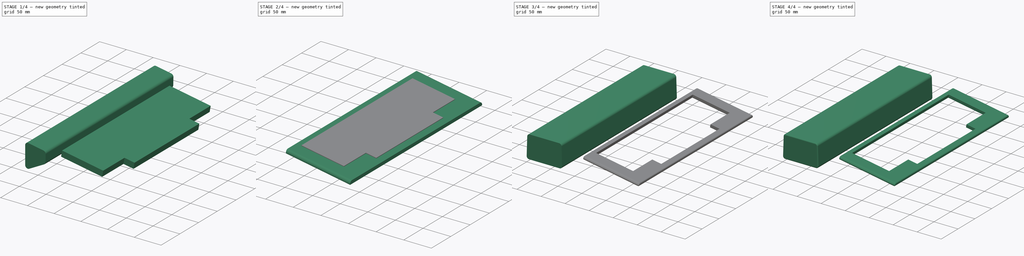
[diagram: build sequence overview — one tinted view per stage of 4, left to right]
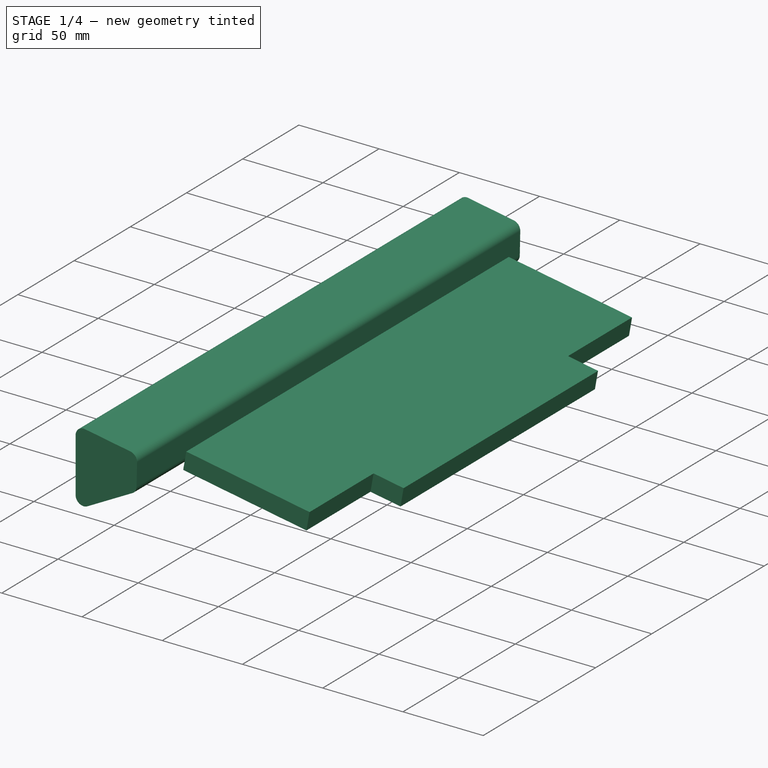
[diagram: stage 1 of 4 — iso view after this stage's code; geometry added in this stage tinted green]
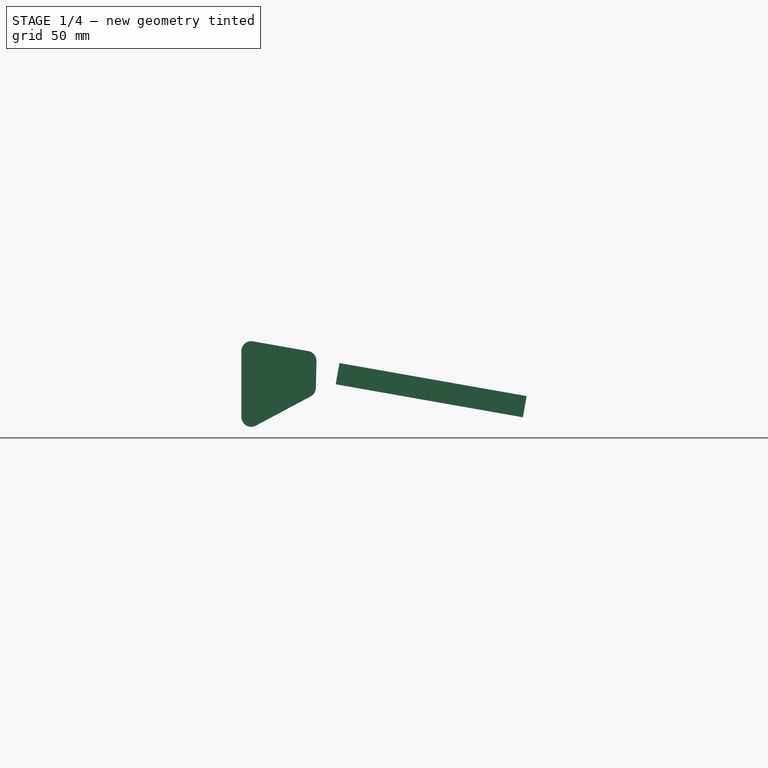
[diagram: stage 1 of 4 — front view after this stage's code; geometry added in this stage tinted green]
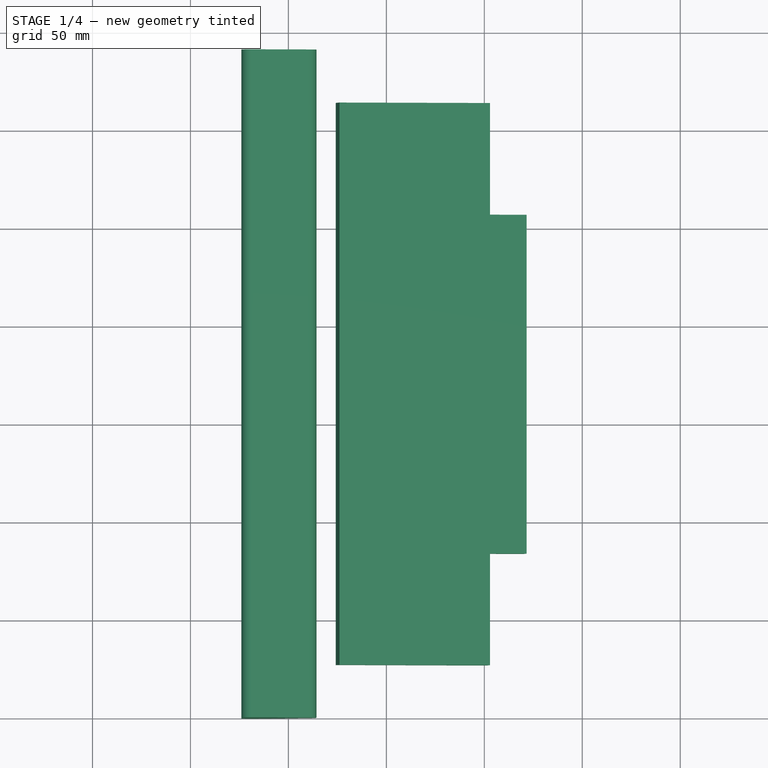
[diagram: stage 1 of 4 — top view after this stage's code; geometry added in this stage tinted green]
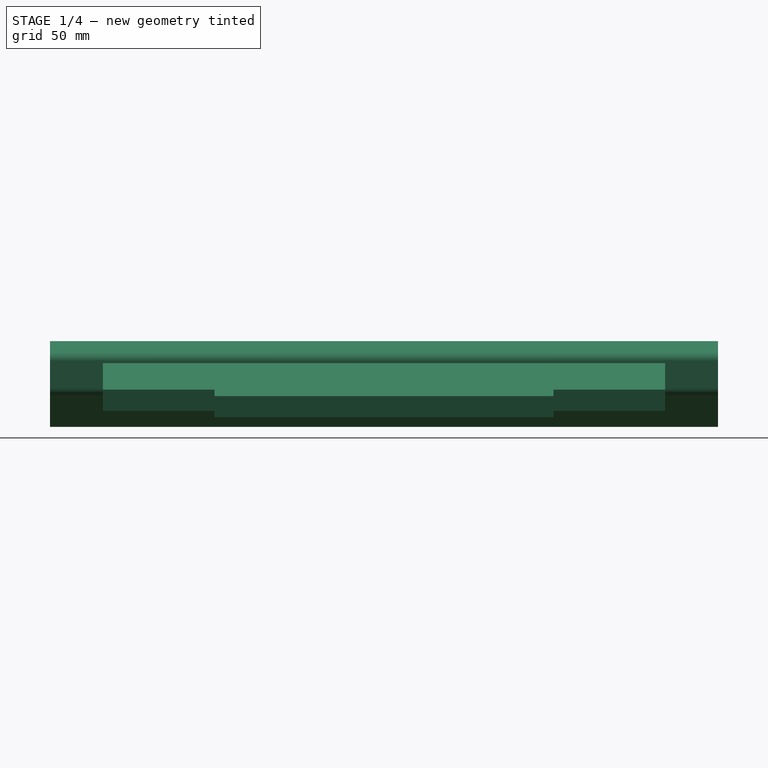
[diagram: stage 1 of 4 — right view after this stage's code; geometry added in this stage tinted green]
FCSTD DOCUMENT  (FreeCAD 1.1R20260325 (Git shallow))
Label: DecentXE-case
License: All rights reserved
LicenseURL: http://en.wikipedia.org/wiki/All_rights_reserved
objects: Sketcher::SketchObject×4, Part::Extrusion×4, Part::Fillet×3, App::Point×3, App::Part×2, Spreadsheet::Sheet×1, PartDesign::FeatureBase×1, PartDesign::Body×1, Part::Feature×1, Part::Cut×1
note: 20 computed .brp shape members not serialized (recipe doc carries the construction recipe); baked Part::Feature solids carry a one-line shape summary decoded from their .brp

FEATURE [Sketcher::SketchObject] Sketch001  label="Side middle"
  ArcFitTolerance = 0
  AttachmentSupport = -> [XZ_Plane001]
  ExternalTypes = [0]
  FullyConstrained = true
  MakeInternals = false
  MapMode = 5
  Placement = pos=(0,0,0) rot=(1,0,0;1.5708rad)
  _ExternalGeoVersion = 0
  expr: Constraints[23] = <<Params>>.SideFillet
  expr: Constraints[24] = <<Params>>.SideFillet
  expr: Constraints[25] = <<Params>>.SideFillet
  expr: Constraints[26] = <<Params>>.SideFillet
  expr: Constraints[27] = <<Params>>.Incline
  sketch-geometry (12):
    g0: LineSegment StartX=76 StartY=53.0412 StartZ=0 EndX=76 EndY=19.3327 EndZ=0
    g1: LineSegment StartX=83.3527 StartY=14.9208 StartZ=0 EndX=111.361 EndY=29.8564 EndZ=0
    g2: LineSegment StartX=114.007 StartY=34.1576 StartZ=0 EndX=114.312 EndY=47.938 EndZ=0
    g3: LineSegment StartX=110.182 StartY=52.9728 StartZ=0 EndX=81.8682 EndY=57.9653 EndZ=0
    g4: ArcOfCircle CenterX=81 CenterY=53.0412 CenterZ=0 NormalX=0 NormalY=0 NormalZ=1 AngleXU=0 Radius=5 StartAngle=1.39626 EndAngle=3.14159
    g5: GeomPoint [constr] X=76 Y=59 Z=0
    g6: ArcOfCircle CenterX=109.314 CenterY=48.0488 CenterZ=0 NormalX=0 NormalY=0 NormalZ=1 AngleXU=0 Radius=5 StartAngle=6.26104 EndAngle=7.67945
    g7: GeomPoint [constr] X=114.408 Y=52.2277 Z=0
    g8: ArcOfCircle CenterX=109.008 CenterY=34.2683 CenterZ=0 NormalX=0 NormalY=0 NormalZ=1 AngleXU=0 Radius=5 StartAngle=5.20228 EndAngle=6.26104
    g9: GeomPoint [constr] X=113.942 Y=31.2329 Z=0
    g10: ArcOfCircle CenterX=81 CenterY=19.3327 CenterZ=0 NormalX=0 NormalY=0 NormalZ=1 AngleXU=0 Radius=5 StartAngle=3.14159 EndAngle=5.20228
    g11: GeomPoint [constr] X=76 Y=11 Z=0
  constraints (28):
    c: Distance(g11,g5) = 48
    c: Distance(g11,g9) = 43
    c: Distance(g9,g7) = 21
    c: Distance(g7,g5) = 39
    c: DistanceY(g-1,g11) = 11
    c: DistanceX(g-1,g11) = 76
    c: Vertical(g0)
    c: PointOnObject(g5,g0)
    c: PointOnObject(g5,g3)
    c: Tangent(g0,g4) = -1.5708
    c: Tangent(g3,g4) = -1.5708
    c: PointOnObject(g7,g3)
    c: PointOnObject(g7,g2)
    c: Tangent(g3,g6) = -1.5708
    c: Tangent(g2,g6) = -1.5708
    c: PointOnObject(g9,g2)
    c: PointOnObject(g9,g1)
    c: Tangent(g2,g8) = -1.5708
    c: Tangent(g1,g8) = -1.5708
    c: PointOnObject(g11,g1)
    c: PointOnObject(g11,g0)
    c: Tangent(g1,g10) = -1.5708
    c: Tangent(g0,g10) = -1.5708
    c: Radius(g4) = 5
    c: Radius(g6) = 5
    c: Radius(g8) = 5
    c: Radius(g10) = 5
    c: Angle(g3,g-1) = 0.174533
FEATURE [Part::Extrusion] Extrude001
  Base = -> Sketch001
  Dir = (0,-1,2e-16)
  DirMode = 2
  FaceMakerClass = Part::FaceMakerBullseye
  FaceMakerMode = 3
  InnerWireTaper = 0
  LengthFwd = -341
  LengthRev = 0
  Solid = true
  Symmetric = false
FEATURE [Sketcher::SketchObject] Sketch003  label="Keyboard cutout"
  ArcFitTolerance = 0
  AttachmentSupport = -> [Fillet002]
  ExternalTypes = [0]
  FullyConstrained = true
  MakeInternals = false
  MapMode = 5
  Placement = pos=(11.6431,0,66.0312) rot=(0,1,0;0.174533rad)
  _ExternalGeoVersion = 0
  expr: Constraints[22] = (<<Params>>.Width - 287) / 2
  sketch-geometry (8):
    g0: LineSegment StartX=116 StartY=27 StartZ=0 EndX=116 EndY=314 EndZ=0
    g1: LineSegment StartX=116 StartY=314 StartZ=0 EndX=194 EndY=314 EndZ=0
    g2: LineSegment StartX=194 StartY=314 StartZ=0 EndX=194 EndY=257 EndZ=0
    g3: LineSegment StartX=194 StartY=257 StartZ=0 EndX=213 EndY=257 EndZ=0
    g4: LineSegment StartX=213 StartY=257 StartZ=0 EndX=213 EndY=84 EndZ=0
    g5: LineSegment StartX=213 StartY=84 StartZ=0 EndX=194 EndY=84 EndZ=0
    g6: LineSegment StartX=194 StartY=84 StartZ=0 EndX=194 EndY=27 EndZ=0
    g7: LineSegment StartX=194 StartY=27 StartZ=0 EndX=116 EndY=27 EndZ=0
  constraints (24):
    c: Vertical(g0)
    c: Coincident(g0,g1)
    c: Horizontal(g1)
    c: Coincident(g1,g2)
    c: Vertical(g2)
    c: Coincident(g2,g3)
    c: Horizontal(g3)
    c: Coincident(g3,g4)
    c: Vertical(g4)
    c: Coincident(g4,g5)
    c: Horizontal(g5)
    c: Coincident(g5,g6)
    c: Vertical(g6)
    c: Coincident(g6,g7)
    c: Coincident(g7,g0)
    c: Horizontal(g7)
    c: Distance(g7) = 78
    c: Equal(g7,g1)
    c: Equal(g6,g2)
    c: DistanceX(g0,g4) = 97
    c: Distance(g0) = 287
    c: Distance(g4) = 173
    c: DistanceY(g-1,g0) = 27
    c: DistanceX(g-1,g0) = 116
FEATURE [Part::Extrusion] Extrude003
  Base = -> Sketch003
  Dir = (0.173648,0,0.984808)
  DirMode = 2
  FaceMakerClass = Part::FaceMakerBullseye
  FaceMakerMode = 3
  InnerWireTaper = 0
  LengthFwd = 1
  LengthRev = 10
  Solid = true
  Symmetric = false
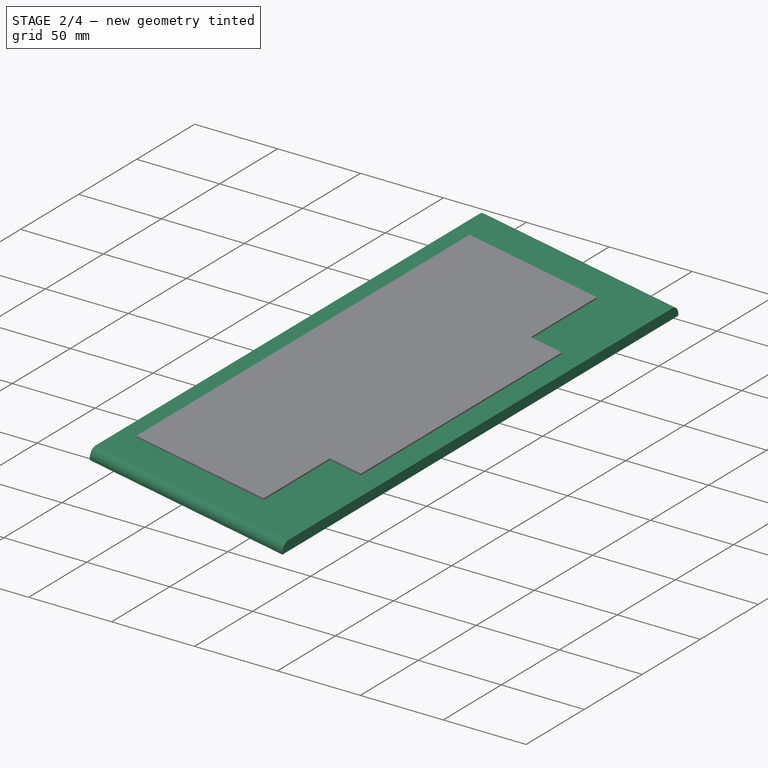
[diagram: stage 2 of 4 — iso view after this stage's code; geometry added in this stage tinted green]
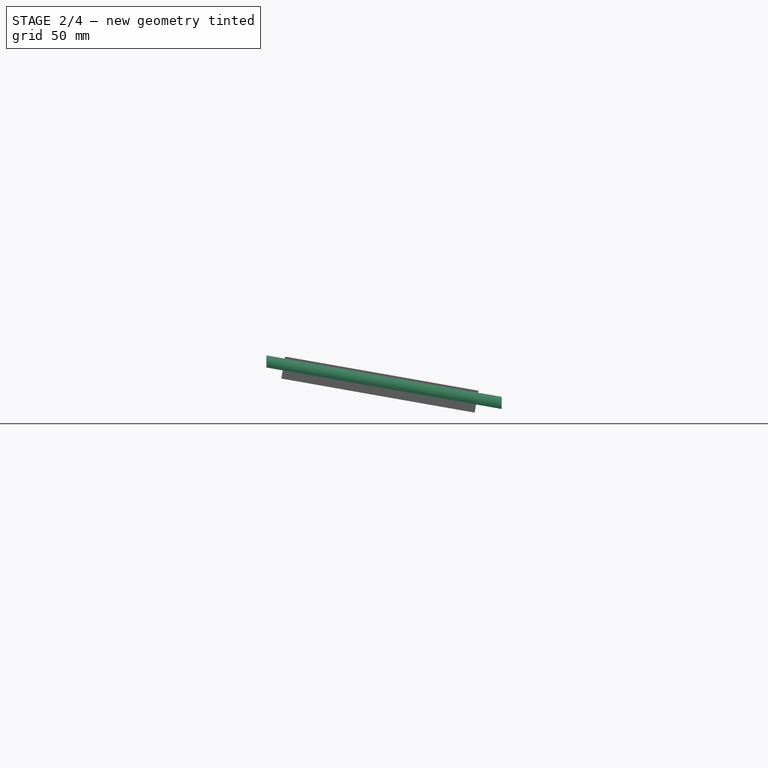
[diagram: stage 2 of 4 — front view after this stage's code; geometry added in this stage tinted green]
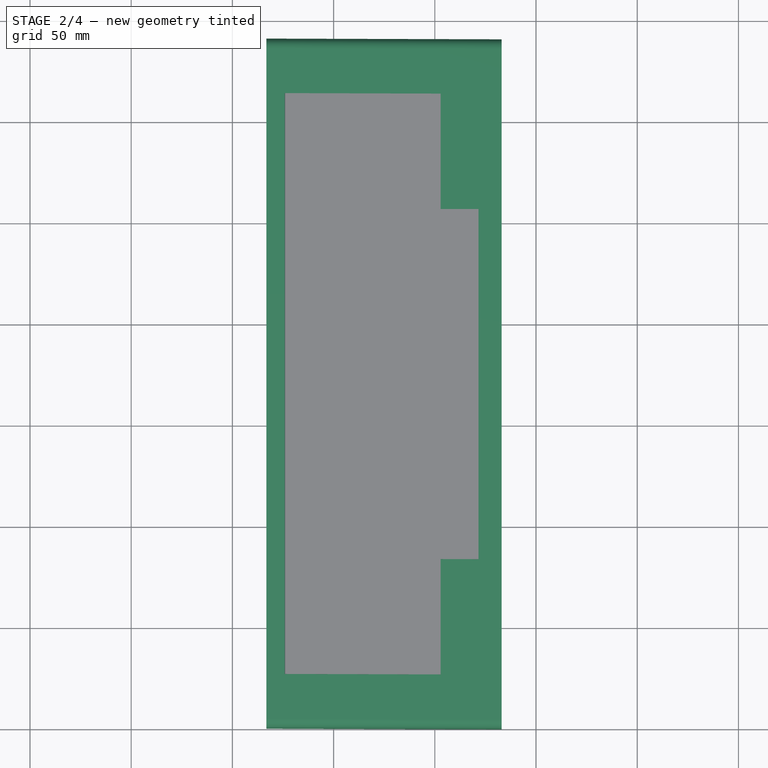
[diagram: stage 2 of 4 — top view after this stage's code; geometry added in this stage tinted green]
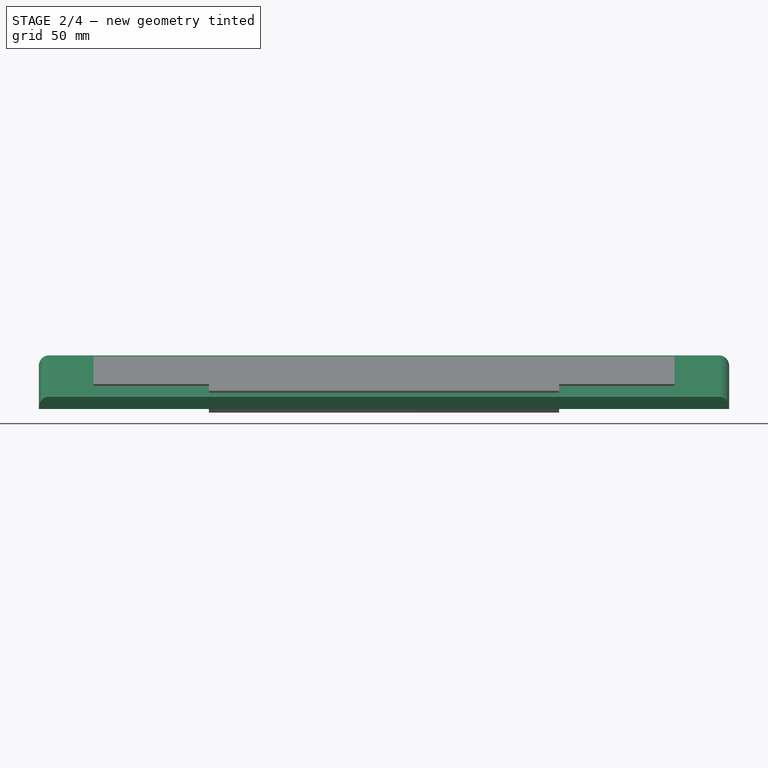
[diagram: stage 2 of 4 — right view after this stage's code; geometry added in this stage tinted green]
FEATURE [Part::Fillet] Fillet001
  Base = -> Extrude001
  EdgeLinks = -> Extrude001 [Edge3,Edge4,Edge6,Edge7,Edge9,Edge10,Edge12,Edge13,Edge15,Edge16,Edge18,Edge19,Edge21,Edge22,Edge23,Edge24]
  Edges = 16 edges r=2: [Edge3,Edge4,Edge6,Edge7,Edge9,Edge10,Edge12,Edge13,Edge15,Edge16,Edge18,Edge19,Edge21,Edge22,Edge23,Edge24]
FEATURE [Sketcher::SketchObject] Sketch002  label="TopKeyboard"
  ArcFitTolerance = 0
  AttachmentOffset = pos=(0,13,233) rot=(0,0,1;0rad)
  AttachmentSupport = -> [YZ_Plane001]
  ExternalTypes = [0]
  FullyConstrained = true
  MakeInternals = false
  MapMode = 5
  Placement = pos=(233,0,13) rot=(0.57735,0.57735,0.57735;2.0944rad)
  _ExternalGeoVersion = 0
  expr: Constraints[14] = <<Params>>.SideFillet
  expr: Constraints[19] = <<Params>>.SideFillet
  expr: Constraints[7] = <<Params>>.Width
  sketch-geometry (8):
    g0: LineSegment StartX=1.066e-13 StartY=8 StartZ=0 EndX=341 EndY=8 EndZ=0
    g1: LineSegment StartX=341 StartY=8 StartZ=0 EndX=341 EndY=9 EndZ=0
    g2: LineSegment StartX=336 StartY=14 StartZ=0 EndX=5 EndY=14 EndZ=0
    g3: LineSegment StartX=1.066e-13 StartY=9 StartZ=0 EndX=1.066e-13 EndY=8 EndZ=0
    g4: ArcOfCircle CenterX=336 CenterY=9 CenterZ=0 NormalX=0 NormalY=0 NormalZ=1 AngleXU=0 Radius=5 StartAngle=0 EndAngle=1.5708
    g5: GeomPoint [constr] X=341 Y=14 Z=0
    g6: ArcOfCircle CenterX=5 CenterY=9 CenterZ=0 NormalX=0 NormalY=0 NormalZ=1 AngleXU=0 Radius=5 StartAngle=1.5708 EndAngle=3.14159
    g7: GeomPoint [constr] X=0 Y=14 Z=0
  constraints (20):
    c: Coincident(g0,g1)
    c: Coincident(g3,g0)
    c: Horizontal(g0)
    c: Horizontal(g2)
    c: Vertical(g1)
    c: Vertical(g3)
    c: PointOnObject(g0,g-2)
    c: DistanceX(g0,g0) = 341
    c: DistanceY(g3,g7) = 6
    c: DistanceY(g-1,g0) = 8
    c: PointOnObject(g5,g1)
    c: PointOnObject(g5,g2)
    c: Tangent(g1,g4) = -1.5708
    c: Tangent(g2,g4) = -1.5708
    c: Radius(g4) = 5
    c: PointOnObject(g7,g3)
    c: PointOnObject(g7,g2)
    c: Tangent(g3,g6) = -1.5708
    c: Tangent(g2,g6) = -1.5708
    c: Radius(g6) = 5
FEATURE [Part::Extrusion] Extrude002
  Base = -> Sketch002
  Dir = (28.3137,-9e-16,-4.99247)
  DirLink = -> Fillet001 [Edge18]
  DirMode = 1
  FaceMakerClass = Part::FaceMakerBullseye
  FaceMakerMode = 3
  InnerWireTaper = 0
  LengthFwd = -118
  LengthRev = 0
  Solid = true
  Symmetric = false
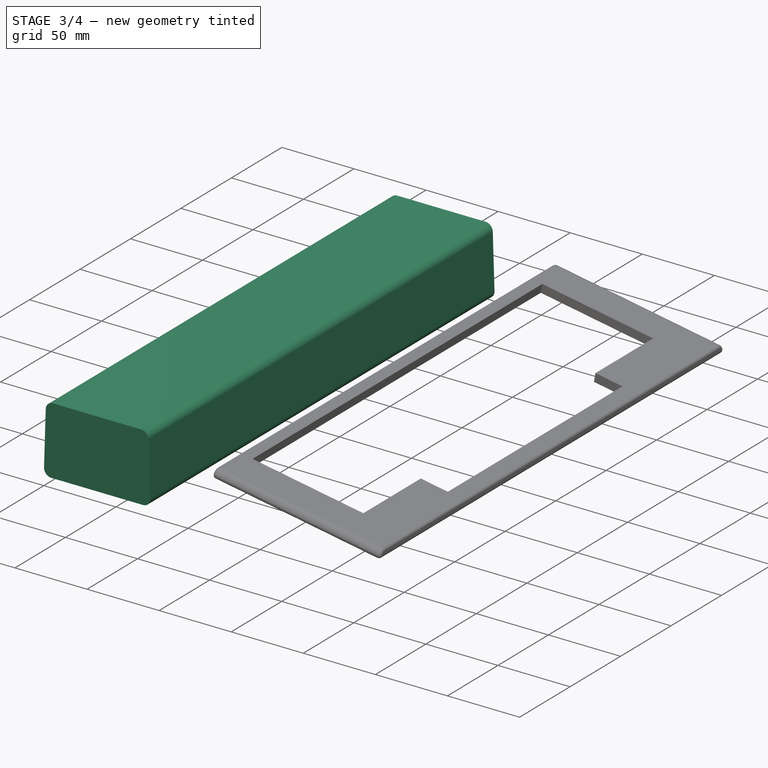
[diagram: stage 3 of 4 — iso view after this stage's code; geometry added in this stage tinted green]
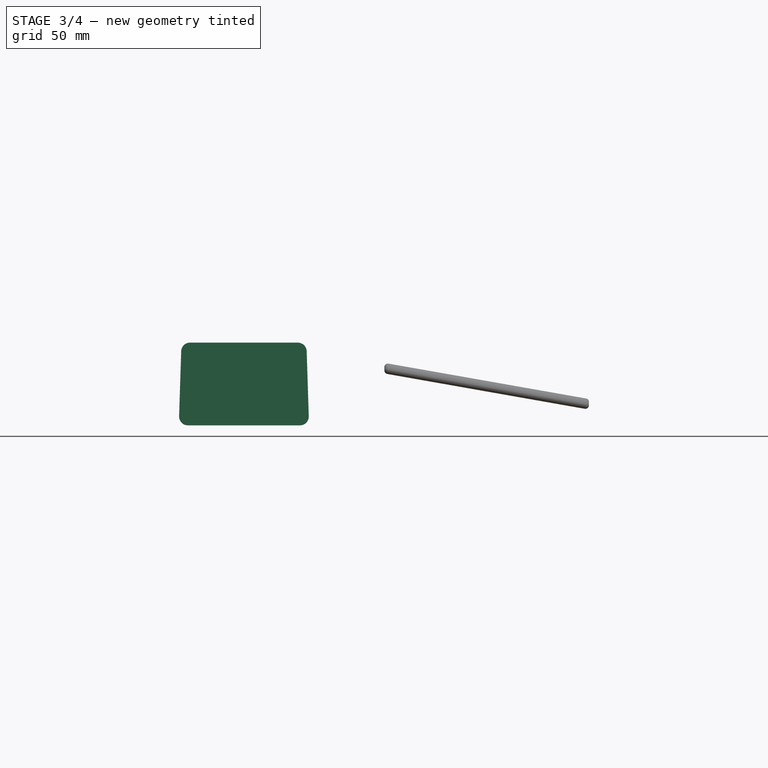
[diagram: stage 3 of 4 — front view after this stage's code; geometry added in this stage tinted green]
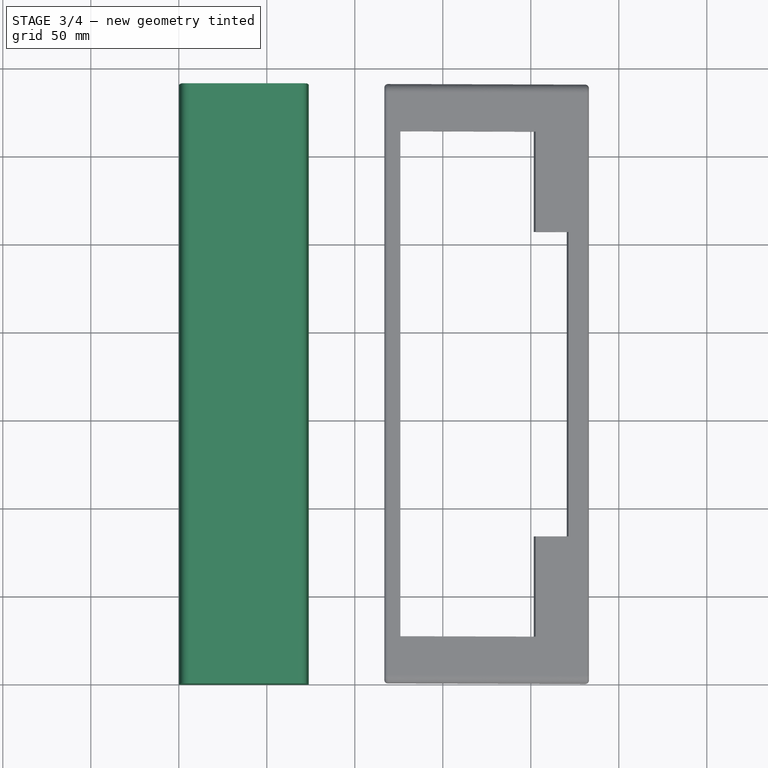
[diagram: stage 3 of 4 — top view after this stage's code; geometry added in this stage tinted green]
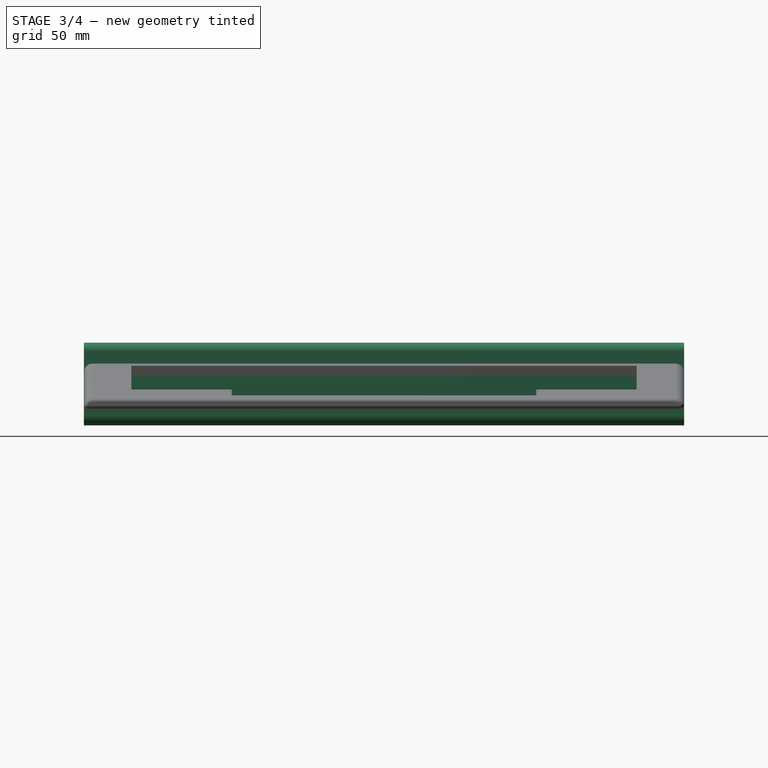
[diagram: stage 3 of 4 — right view after this stage's code; geometry added in this stage tinted green]
FEATURE [Spreadsheet::Sheet] Spreadsheet  label="Params"
  cells = A1='Width; B1(Width)=341; A2='SideFillet; B2(SideFillet)=5; A3='Incline; B3(Incline)=10; A4='SmallFillet; B4(SmallFillet)=2
FEATURE [Sketcher::SketchObject] Sketch  label="Side back"
  ArcFitTolerance = 0
  AttachmentSupport = -> [XZ_Plane001]
  ExternalTypes = [0]
  Fillet = 5
  FullyConstrained = true
  MakeInternals = false
  MapMode = 5
  Placement = pos=(0,0,0) rot=(1,0,0;1.5708rad)
  _ExternalGeoVersion = 0
  expr: .Constraints.Fillet = <<Params>>.SideFillet
  expr: Constraints[25] = <<Params>>.SideFillet
  expr: Constraints[26] = <<Params>>.SideFillet
  expr: Constraints[27] = <<Params>>.SideFillet
  sketch-geometry (12):
    g0: LineSegment StartX=0.164665 StartY=17.1595 StartZ=0 EndX=1.34552 EndY=54.1595 EndZ=0
    g1: LineSegment StartX=6.34297 StartY=59 StartZ=0 EndX=67.657 EndY=59 EndZ=0
    g2: LineSegment StartX=72.6545 StartY=54.1595 StartZ=0 EndX=73.8353 EndY=17.1595 EndZ=0
    g3: LineSegment StartX=68.8379 StartY=12 StartZ=0 EndX=5.16212 EndY=12 EndZ=0
    g4: ArcOfCircle CenterX=6.34297 CenterY=54 CenterZ=0 NormalX=0 NormalY=0 NormalZ=1 AngleXU=0 Radius=5 StartAngle=1.5708 EndAngle=3.10969
    g5: GeomPoint [constr] X=1.5 Y=59 Z=0
    g6: ArcOfCircle CenterX=67.657 CenterY=54 CenterZ=0 NormalX=0 NormalY=0 NormalZ=1 AngleXU=0 Radius=5 StartAngle=0.0319041 EndAngle=1.5708
    g7: GeomPoint [constr] X=72.5 Y=59 Z=0
    g8: ArcOfCircle CenterX=68.8379 CenterY=17 CenterZ=0 NormalX=0 NormalY=0 NormalZ=1 AngleXU=0 Radius=5 StartAngle=4.71239 EndAngle=6.31509
    g9: GeomPoint [constr] X=74 Y=12 Z=0
    g10: ArcOfCircle CenterX=5.16212 CenterY=17 CenterZ=0 NormalX=0 NormalY=0 NormalZ=1 AngleXU=0 Radius=5 StartAngle=3.10969 EndAngle=4.71239
    g11: GeomPoint [constr] X=0 Y=12 Z=0
  constraints (28):
    c: PointOnObject(g11,g-2)
    c: Horizontal(g1)
    c: Horizontal(g3)
    c: DistanceX(g11,g5) = 1.5
    c: DistanceX(g7,g9) = 1.5
    c: DistanceX(g7,g5) = -71
    c: DistanceY(g11,g5) = 47
    c: DistanceY(g11,g-1) = -12
    c: PointOnObject(g5,g0)
    c: PointOnObject(g5,g1)
    c: Tangent(g0,g4) = 1.5708
    c: Tangent(g1,g4) = 1.5708
    c: PointOnObject(g7,g1)
    c: PointOnObject(g7,g2)
    c: Tangent(g1,g6) = 1.5708
    c: Tangent(g2,g6) = 1.5708
    c: PointOnObject(g9,g2)
    c: PointOnObject(g9,g3)
    c: Tangent(g2,g8) = 1.5708
    c: Tangent(g3,g8) = 1.5708
    c: PointOnObject(g11,g3)
    c: PointOnObject(g11,g0)
    c: Tangent(g3,g10) = 1.5708
    c: Tangent(g0,g10) = 1.5708
    c: Radius(g4) = 5  'Fillet'
    c: Radius(g6) = 5
    c: Radius(g8) = 5
    c: Radius(g10) = 5
FEATURE [Part::Extrusion] Extrude  label="Back block"
  Base = -> Sketch
  Dir = (0,-1,2e-16)
  DirMode = 2
  FaceMakerClass = Part::FaceMakerBullseye
  FaceMakerMode = 3
  InnerWireTaper = 0
  LengthFwd = -341
  LengthRev = 0
  Solid = true
  Symmetric = false
  expr: LengthFwd = -<<Params>>.Width
FEATURE [Part::Fillet] Fillet002
  Base = -> Extrude002
  EdgeLinks = -> Extrude002 [Edge1,Edge2,Edge3,Edge4,Edge6,Edge7,Edge9,Edge10,Edge12,Edge13,Edge15,Edge16,Edge17,Edge18]
  Edges = 14 edges r=2: [Edge1,Edge2,Edge3,Edge4,Edge6,Edge7,Edge9,Edge10,Edge12,Edge13,Edge15,Edge16,Edge17,Edge18]
FEATURE [PartDesign::Body] Body  label="Body back"
  AllowCompound = true
  BaseFeature = -> Fillet
  Group = -> [BaseFeature]
  Origin = -> Origin001
  Tip = -> BaseFeature
FEATURE [App::Part] Part  label="Back"
  Group = -> [Sketch,Extrude,Fillet,Body]
  Origin = -> Origin
FEATURE [App::Part] Part001  label="Front"
  Group = -> [Extrude002,Sketch003,Extrude001,Sketch001,Extrude003,Fillet002,Sketch002,Fillet001]
  Origin = -> Origin002
FEATURE [Part::Feature] Fillet001_solid  label="Fillet001 (Solid)"
  shape: bbox 39.14 x 341 x 44.45 mm, 26 faces (baked)
FEATURE [Part::Cut] Cut
  Base = -> Fillet002
  Tool = -> Extrude003
FEATURE [App::Point] Origin003  label="Origin"
  Role = Origin
FEATURE [App::Point] Origin004  label="Origin"
  Role = Origin
FEATURE [App::Point] Origin005  label="Origin"
  Role = Origin
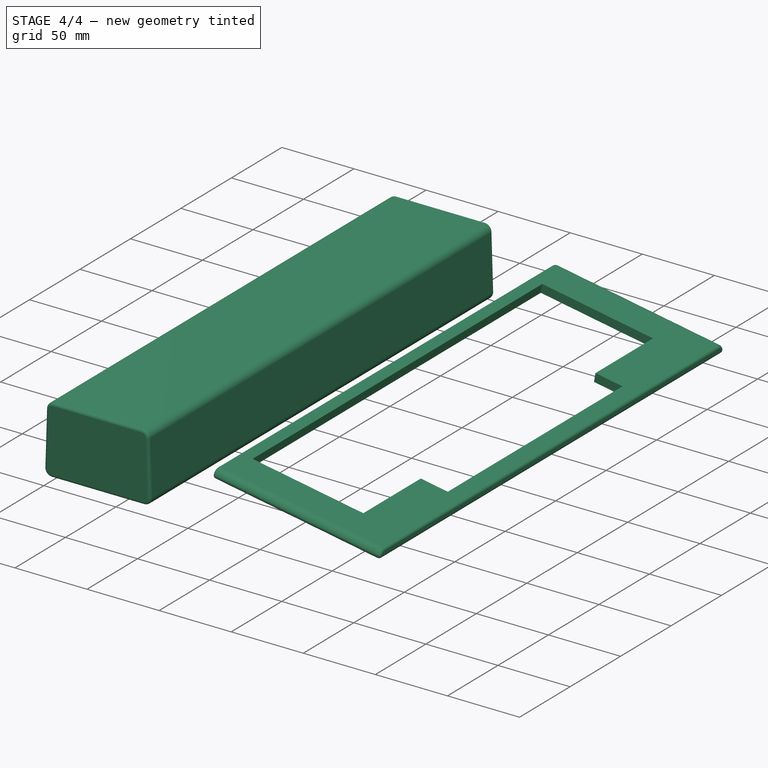
[diagram: stage 4 of 4 — iso view after this stage's code; geometry added in this stage tinted green]
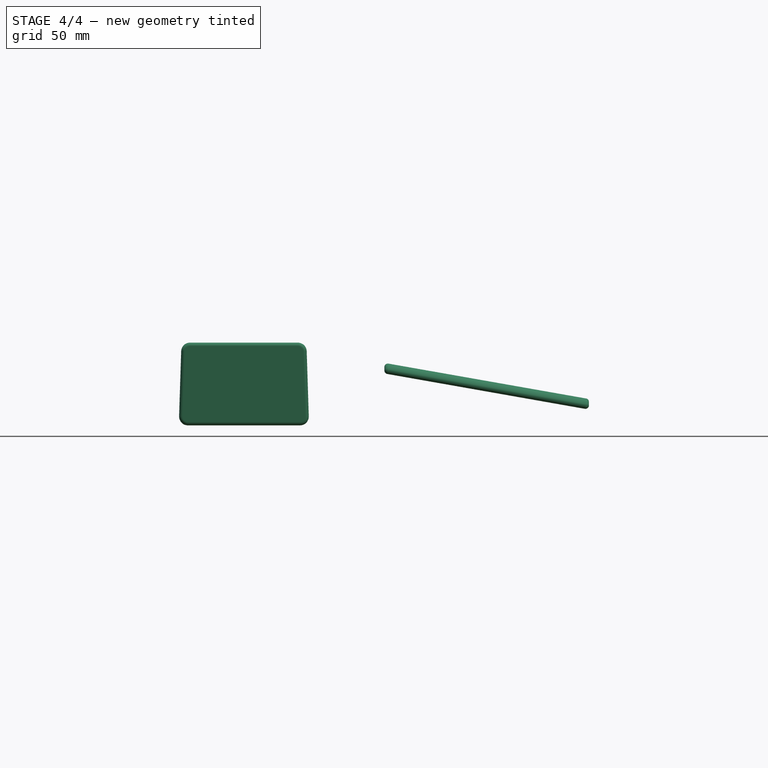
[diagram: stage 4 of 4 — front view after this stage's code; geometry added in this stage tinted green]
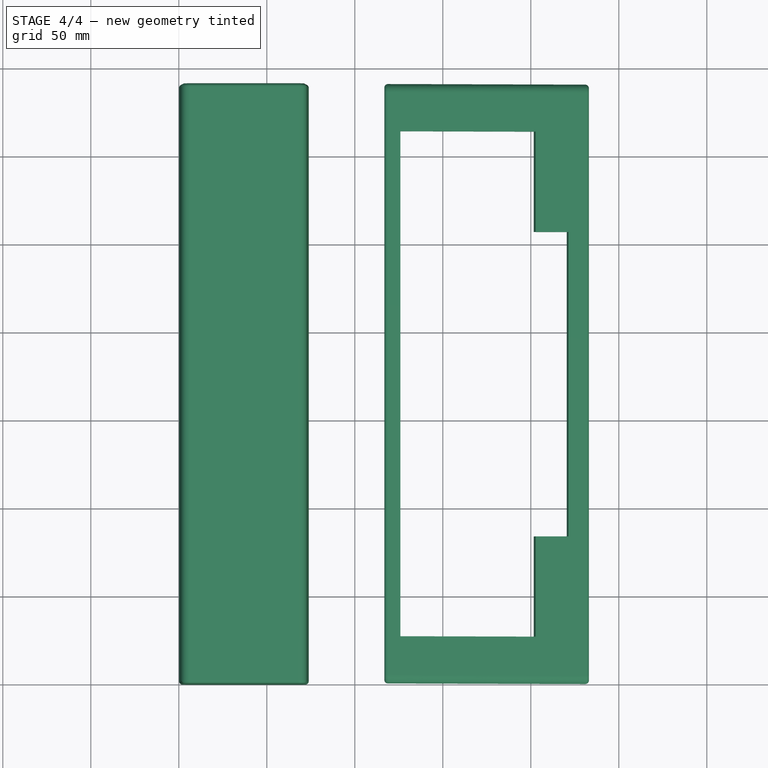
[diagram: stage 4 of 4 — top view after this stage's code; geometry added in this stage tinted green]
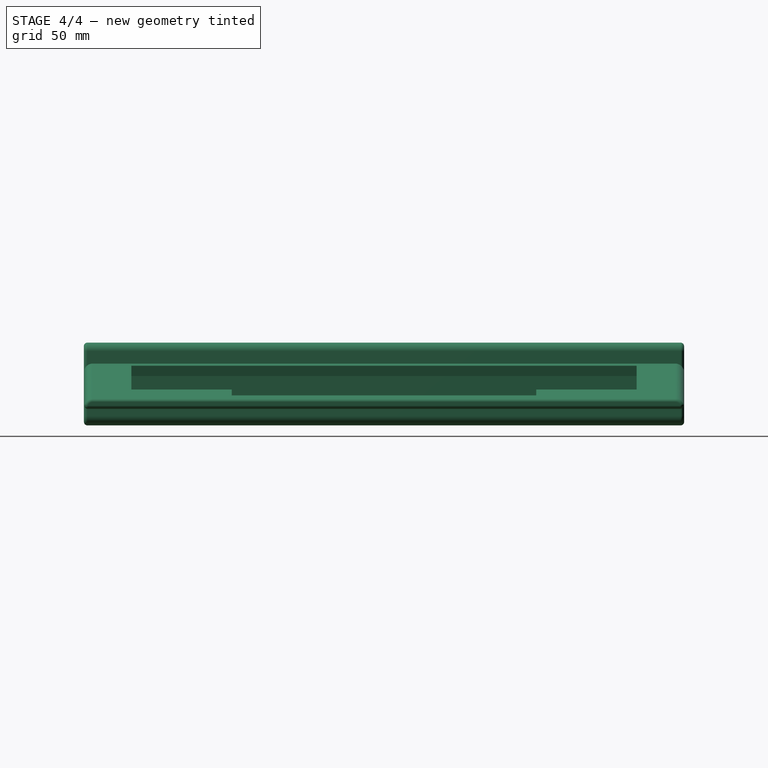
[diagram: stage 4 of 4 — right view after this stage's code; geometry added in this stage tinted green]
FEATURE [Part::Fillet] Fillet
  Base = -> Extrude
  EdgeLinks = -> Extrude [Edge3,Edge4,Edge6,Edge7,Edge9,Edge10,Edge12,Edge13,Edge15,Edge16,Edge18,Edge19,Edge21,Edge22,Edge23,Edge24]
  Edges = 16 edges r=2: [Edge3,Edge4,Edge6,Edge7,Edge9,Edge10,Edge12,Edge13,Edge15,Edge16,Edge18,Edge19,Edge21,Edge22,Edge23,Edge24]
FEATURE [PartDesign::FeatureBase] BaseFeature
  BaseFeature = -> Fillet
  Suppressed = false
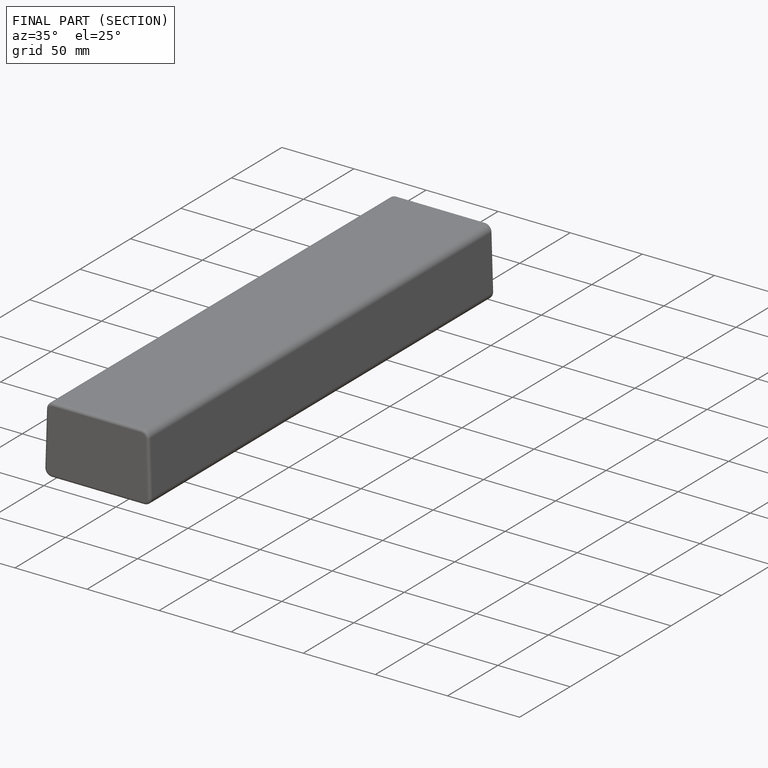
[diagram: finished part — half-section view (interior)]
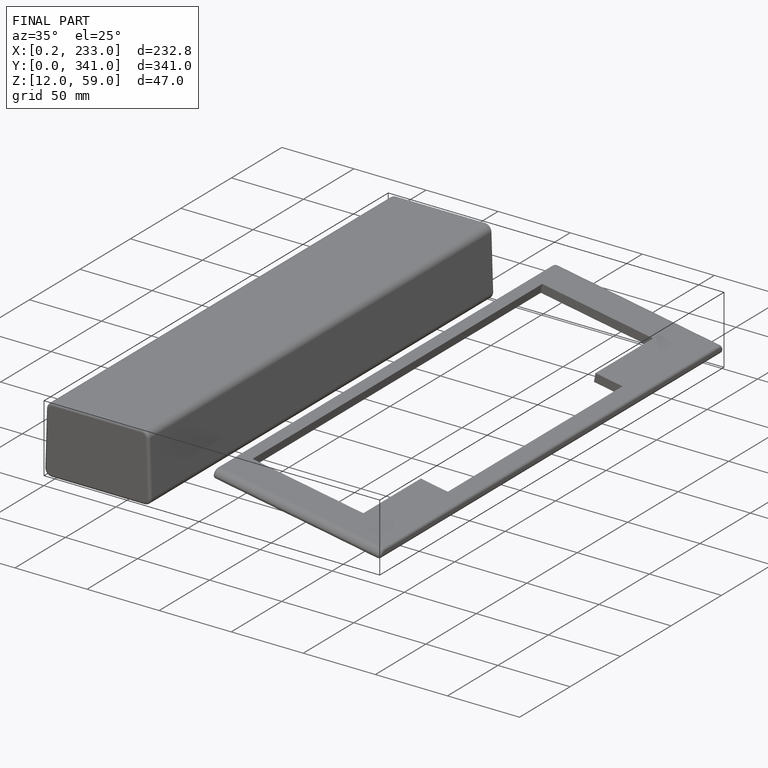
[diagram: finished part — iso view with bounding-box wireframe]
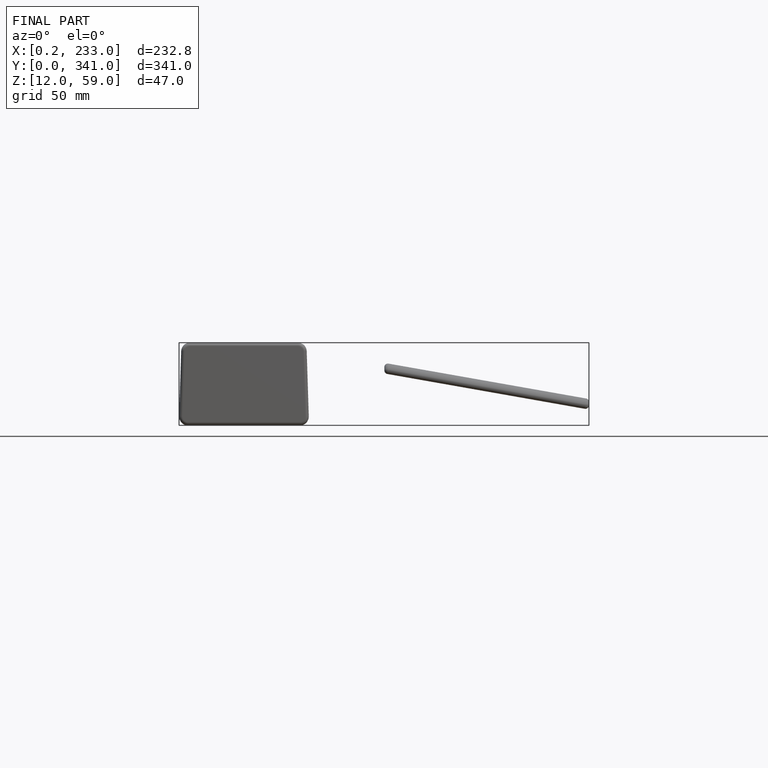
[diagram: finished part — front view with bounding-box wireframe]
